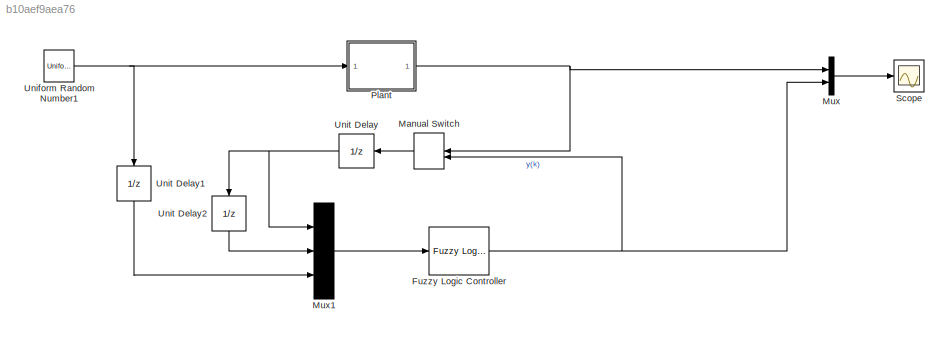
MODEL slx_b10aef9aea76
KIND model
CONFIG AbsTol = auto
CONFIG FixedStep = auto
CONFIG MaxStep = auto
CONFIG MinStep = auto
CONFIG RelTol = 1e-3
CONFIG SampleTimeConstraint = Unconstrained
CONFIG Solver = VariableStepAuto
CONFIG SolverMode = Auto
CONFIG SolverName = VariableStepAuto
CONFIG StartTime = 0.0
CONFIG StopTime = 200
BLOCK [Reference] Fuzzy Logic Controller  REF=fuzblock/Fuzzy Logic   (lib defined in mdl_858b3b3e7478)
Controller
  Ports = [1, 1]
  SourceBlock = fuzblock/Fuzzy Logic \nController
  SourceType = FIS
BLOCK [ManualSwitch] Manual Switch
  CurrentSetting = 0
BLOCK [Mux] Mux
  DisplayOption = bar
  Inputs = 2
  Ports = [2, 1]
BLOCK [Mux] Mux1
  DisplayOption = bar
  Inputs = 3
  Ports = [3, 1]
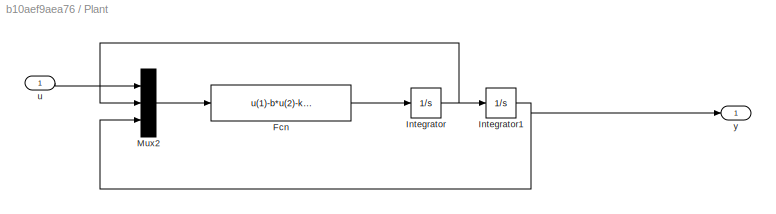
BLOCK [SubSystem] Plant
  Ports = [1, 1]
  RequestExecContextInheritance = off
  Variant = off
BLOCK [Fcn] Plant/Fcn
  Expr = u(1)-b*u(2)-k*u(3)^3
BLOCK [Integrator] Plant/Integrator
  Ports = [1, 1]
BLOCK [Integrator] Plant/Integrator1
  Ports = [1, 1]
BLOCK [Mux] Plant/Mux2
  DisplayOption = bar
  Inputs = 3
  Ports = [3, 1]
BLOCK [Inport] Plant/u
  IconDisplay = Port number
BLOCK [Outport] Plant/y
  IconDisplay = Port number
BLOCK [Scope] Scope
  Ports = [1]
  ScopeSpecificationString = Simulink.scopes.TimeScopeBlockCfg('CurrentConfiguration', extmgr.ConfigurationSet(extmgr.Configuration('Core','General UI',true),extmgr.Configuration('Core','Source UI',true),extmgr.Configuration('Sources','WiredSimulink',true),extmgr.Configuration('Visuals','Time Domain',true,'SerializedDisplays',{struct('MinYLimReal','-0.14359','MaxYLimReal','1.2035','YLabelReal','','MinYLimMag','0.00000','MaxYL...<+1425ch>
BLOCK [UniformRandomNumber] Uniform Random Number1
  Maximum = 5
  Minimum = 0
  SampleTime = 10
BLOCK [UnitDelay] Unit Delay
  InputProcessing = Elements as channels (sample based)
  SampleTime = 0.1
BLOCK [UnitDelay] Unit Delay1
  InputProcessing = Elements as channels (sample based)
  SampleTime = 0.1
BLOCK [UnitDelay] Unit Delay2
  InputProcessing = Elements as channels (sample based)
  SampleTime = 0.1
NET Fuzzy Logic Controller:1 -> Manual Switch:2, Mux:2
LINE Manual Switch:1 -> Unit Delay:1
LINE Mux1:1 -> Fuzzy Logic Controller:1
LINE Mux:1 -> Scope:1
LINE Plant/Fcn:1 -> Plant/Integrator:1
NET Plant/Integrator1:1 -> Plant/Mux2:3, Plant/y:1
NET Plant/Integrator:1 -> Plant/Integrator1:1, Plant/Mux2:2
LINE Plant/Mux2:1 -> Plant/Fcn:1
LINE Plant/u:1 -> Plant/Mux2:1
NET Plant:1 -> Manual Switch:1, Mux:1
NET Uniform Random Number1:1 -> Plant:1, Unit Delay1:1
LINE Unit Delay1:1 -> Mux1:3
LINE Unit Delay2:1 -> Mux1:2
NET Unit Delay:1 -> Mux1:1, Unit Delay2:1
note: NET lines group one-source signal fan-out (src -> all destinations, sorted); 1:1 wires keep LINE
